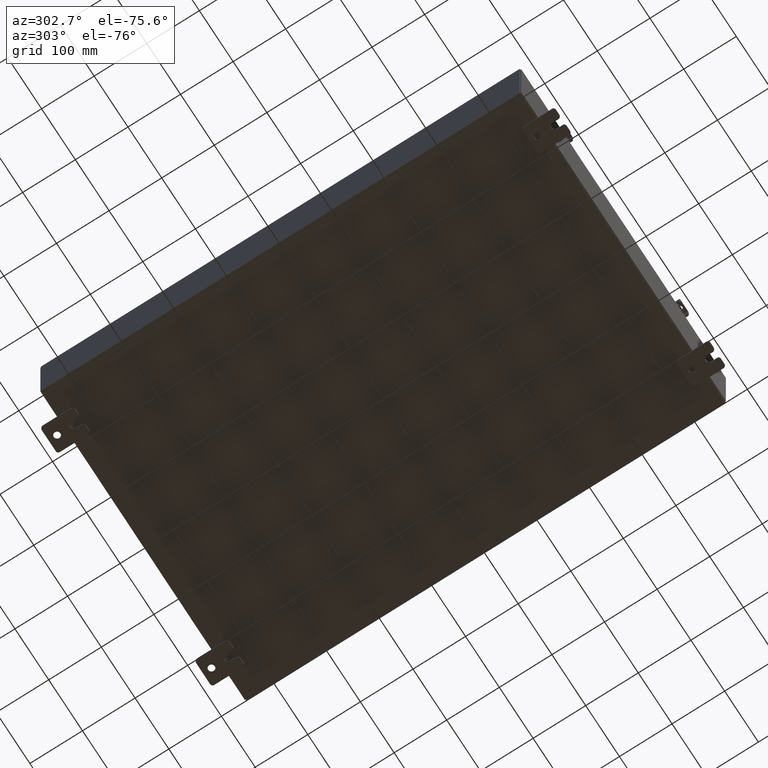
[diagram: clean part render]
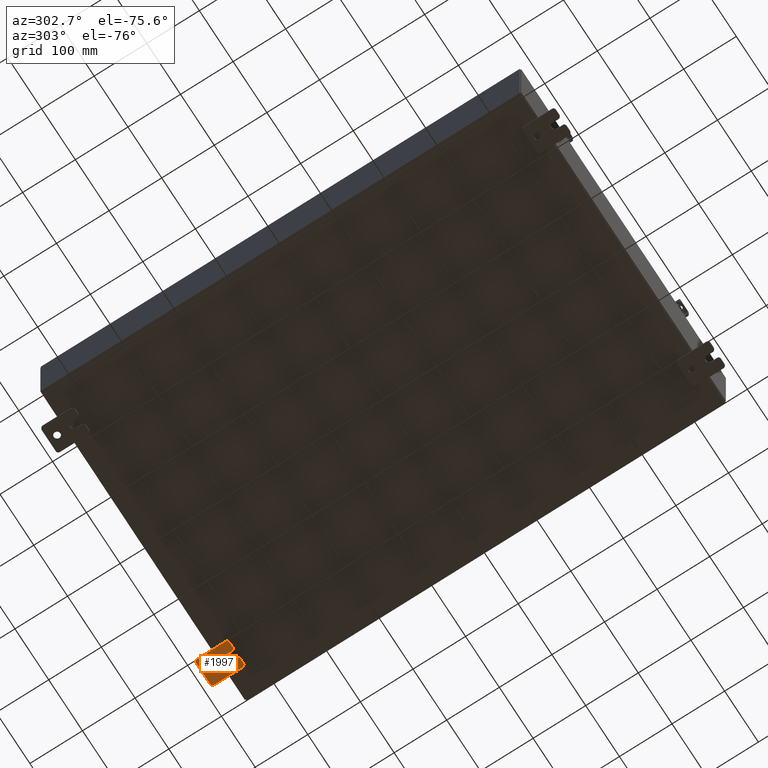
[diagram: same view with one face highlighted and labeled with its STEP entity id]
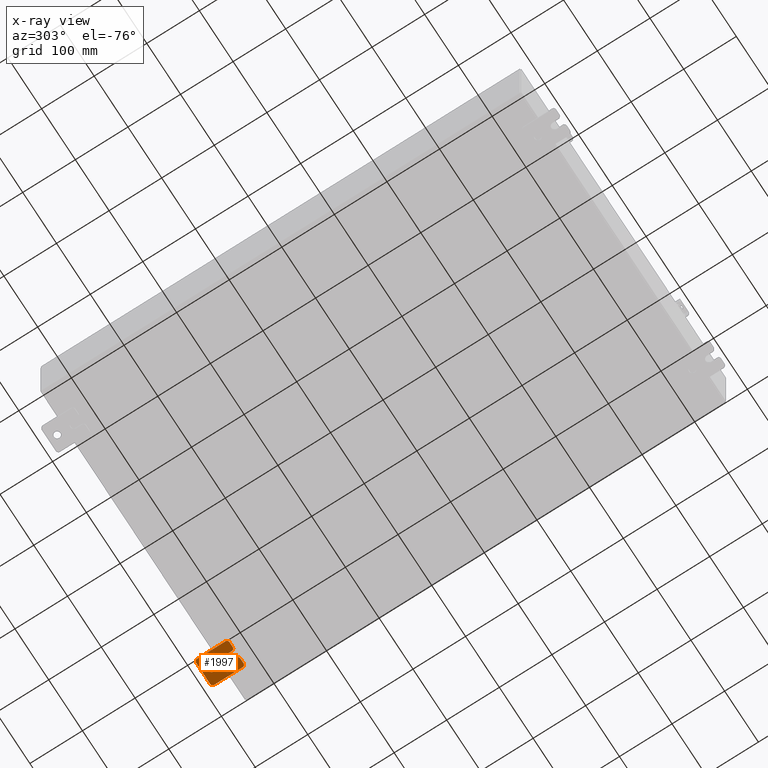
[diagram: x-ray of the same camera — body ghosted, the highlighted face saturated]
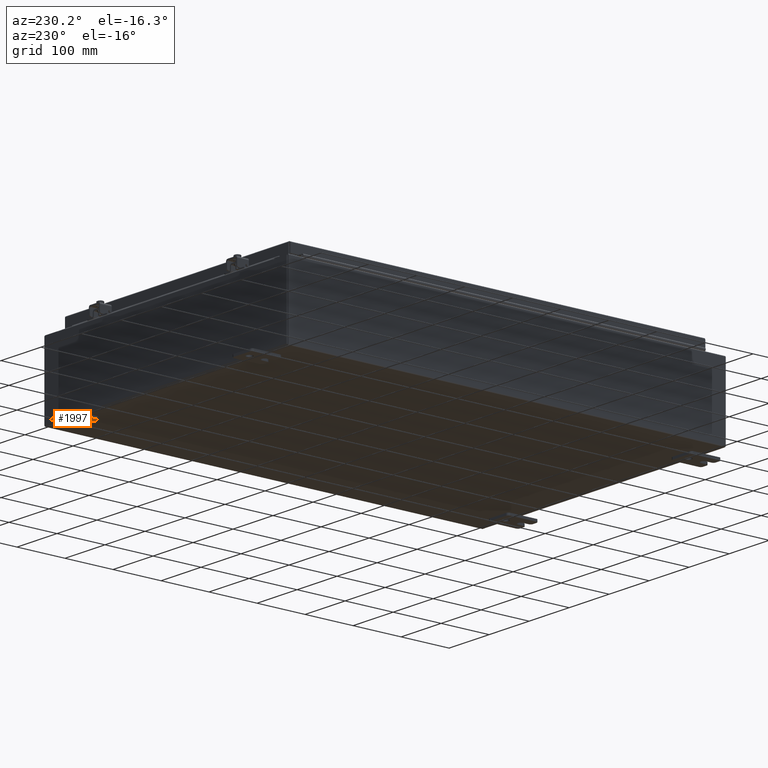
[diagram: same view with one face highlighted and labeled with its STEP entity id]
A machine part, auxiliary view. The second image highlights one B-rep face of the part: STEP entity #1997.
The next image is the same camera in x-ray: the body ghosted, the highlighted face saturated — about 0% of this face is hidden behind the body in this view.
A second angle (auxiliary view) of the same face is appended — the face is thin or edge-on in the first view.
In plain terms, the highlighted planar face has unit normal (0, 0, 1).
Its self-contained STEP definition (entity closure, byte-faithful):
#834 = CARTESIAN_POINT ( 'NONE',  ( -0.1879999999999997800, -1.250000000000002200, 0.9999999999999992200 ) ) ;
#854 = LINE ( 'NONE', #9519, #16379 ) ;
#1848 = EDGE_CURVE ( 'NONE', #13896, #25343, #11838, .T. ) ;
#1997 = ADVANCED_FACE ( 'NONE', ( #22131, #4569 ), #38419, .F. ) ;
#2129 = AXIS2_PLACEMENT_3D ( 'NONE', #26538, #6827, #29881 ) ;
#2768 = ORIENTED_EDGE ( 'NONE', *, *, #3434, .F. ) ;
#3088 = CARTESIAN_POINT ( 'NONE',  ( -0.1880000000000010000, 0.6249999999999992200, -7.703811342100550500E-020 ) ) ;
#3286 = EDGE_CURVE ( 'NONE', #25491, #25343, #6067, .T. ) ;
#3434 = EDGE_CURVE ( 'NONE', #24543, #41381, #854, .T. ) ;
#3578 = EDGE_CURVE ( 'NONE', #38608, #25491, #29747, .T. ) ;
#3685 = DIRECTION ( 'NONE',  ( -1.000000000000000000, 6.523827964459549700E-016, 5.163192708025532000E-017 ) ) ;
#3688 = LINE ( 'NONE', #12963, #20224 ) ;
#3749 = EDGE_CURVE ( 'NONE', #40767, #12719, #8096, .T. ) ;
#3792 = VERTEX_POINT ( 'NONE', #37645 ) ;
#4182 = EDGE_CURVE ( 'NONE', #40361, #41381, #10135, .T. ) ;
#4418 = CARTESIAN_POINT ( 'NONE',  ( -0.1880000000000001900, -0.6249999999999992200, 0.2500000000000005000 ) ) ;
#4506 = VERTEX_POINT ( 'NONE', #41260 ) ;
#4569 = FACE_OUTER_BOUND ( 'NONE', #33772, .T. ) ;
#5276 = CIRCLE ( 'NONE', #29681, 0.2499999999999999200 ) ;
#5283 = CARTESIAN_POINT ( 'NONE',  ( -0.1879999999999997800, 1.249999999999994200, -1.000000000000010400 ) ) ;
#5461 = CARTESIAN_POINT ( 'NONE',  ( -0.1879999999999997800, 0.0000000000000000000, 0.0000000000000000000 ) ) ;
#5736 = VECTOR ( 'NONE', #11937, 39.37007874015748100 ) ;
#6067 = LINE ( 'NONE', #41520, #40002 ) ;
#6434 = DIRECTION ( 'NONE',  ( 0.0000000000000000000, 0.0000000000000000000, -1.000000000000000000 ) ) ;
#6543 = CARTESIAN_POINT ( 'NONE',  ( -0.1879999999999997800, -1.060000000000004100, -0.8100000000000050500 ) ) ;
#6603 = VECTOR ( 'NONE', #20603, 39.37007874015748100 ) ;
#6760 = AXIS2_PLACEMENT_3D ( 'NONE', #5461, #18728, #41650 ) ;
#6809 = LINE ( 'NONE', #38991, #14544 ) ;
#6827 = DIRECTION ( 'NONE',  ( -1.000000000000000000, -0.0000000000000000000, 0.0000000000000000000 ) ) ;
#6909 = ORIENTED_EDGE ( 'NONE', *, *, #11608, .F. ) ;
#7624 = LINE ( 'NONE', #834, #6603 ) ;
#8096 = CIRCLE ( 'NONE', #14289, 0.2499999999999999200 ) ;
#9270 = EDGE_CURVE ( 'NONE', #3792, #25992, #33677, .T. ) ;
#9467 = CARTESIAN_POINT ( 'NONE',  ( -0.1879999999999997800, -1.250000000000003100, 0.4400000000000020000 ) ) ;
#9519 = CARTESIAN_POINT ( 'NONE',  ( -0.1879999999999997800, 1.249999999999997600, 0.9999999999999951200 ) ) ;
#9862 = DIRECTION ( 'NONE',  ( 0.0000000000000000000, 0.0000000000000000000, -1.000000000000000000 ) ) ;
#9931 = AXIS2_PLACEMENT_3D ( 'NONE', #18302, #41197, #21589 ) ;
#10135 = CIRCLE ( 'NONE', #2129, 0.1900000000000011100 ) ;
#10136 = ORIENTED_EDGE ( 'NONE', *, *, #4182, .T. ) ;
#11107 = CARTESIAN_POINT ( 'NONE',  ( -0.1880000000000010000, 0.6249999999999992200, 0.2499999999999999200 ) ) ;
#11579 = ORIENTED_EDGE ( 'NONE', *, *, #11689, .F. ) ;
#11608 = EDGE_CURVE ( 'NONE', #40361, #27119, #6809, .T. ) ;
#11689 = EDGE_CURVE ( 'NONE', #24209, #38608, #3688, .T. ) ;
#11838 = CIRCLE ( 'NONE', #18635, 0.1900000000000011100 ) ;
#11937 = DIRECTION ( 'NONE',  ( 0.0000000000000000000, 1.639108796198553600E-015, 1.000000000000000000 ) ) ;
#12010 = ORIENTED_EDGE ( 'NONE', *, *, #25391, .F. ) ;
#12719 = VERTEX_POINT ( 'NONE', #26972 ) ;
#12754 = CARTESIAN_POINT ( 'NONE',  ( -0.1879999999999997800, -1.060000000000003400, -0.4400000000000005000 ) ) ;
#12884 = CIRCLE ( 'NONE', #9931, 0.1900000000000011100 ) ;
#12963 = CARTESIAN_POINT ( 'NONE',  ( -0.1880000000000005800, -1.250000000000003800, 0.2500000000000005000 ) ) ;
#13142 = EDGE_CURVE ( 'NONE', #24209, #27119, #37576, .T. ) ;
#13896 = VERTEX_POINT ( 'NONE', #25609 ) ;
#14026 = VERTEX_POINT ( 'NONE', #23033 ) ;
#14289 = AXIS2_PLACEMENT_3D ( 'NONE', #34201, #14503, #37520 ) ;
#14372 = ORIENTED_EDGE ( 'NONE', *, *, #1848, .T. ) ;
#14412 = CARTESIAN_POINT ( 'NONE',  ( -0.1880000000000004700, -1.060000000000003400, -0.2499999999999994400 ) ) ;
#14438 = CARTESIAN_POINT ( 'NONE',  ( -0.1879999999999997800, 1.059999999999993400, -1.000000000000010000 ) ) ;
#14503 = DIRECTION ( 'NONE',  ( 1.000000000000000000, -0.0000000000000000000, -5.163192708025532000E-017 ) ) ;
#14544 = VECTOR ( 'NONE', #16013, 39.37007874015748100 ) ;
#14873 = EDGE_CURVE ( 'NONE', #14026, #4506, #15552, .T. ) ;
#15552 = LINE ( 'NONE', #5283, #5736 ) ;
#15771 = ORIENTED_EDGE ( 'NONE', *, *, #14873, .F. ) ;
#16013 = DIRECTION ( 'NONE',  ( 0.0000000000000000000, -1.639108796198553600E-015, -1.000000000000000000 ) ) ;
#16063 = DIRECTION ( 'NONE',  ( 0.0000000000000000000, 0.0000000000000000000, -1.000000000000000000 ) ) ;
#16379 = VECTOR ( 'NONE', #35849, 39.37007874015748100 ) ;
#16961 = CIRCLE ( 'NONE', #31149, 0.1900000000000011100 ) ;
#17231 = EDGE_CURVE ( 'NONE', #13896, #25992, #7624, .T. ) ;
#17380 = CARTESIAN_POINT ( 'NONE',  ( -0.1879999999999997800, 1.059999999999996300, 0.8099999999999938400 ) ) ;
#17935 = CARTESIAN_POINT ( 'NONE',  ( -0.1879999999999997800, -1.060000000000002100, 0.4400000000000016700 ) ) ;
#18302 = CARTESIAN_POINT ( 'NONE',  ( -0.1879999999999997800, 1.059999999999993600, -0.8100000000000089400 ) ) ;
#18589 = DIRECTION ( 'NONE',  ( -6.556435184794182400E-016, -1.000000000000000000, -1.639108796198545600E-016 ) ) ;
#18635 = AXIS2_PLACEMENT_3D ( 'NONE', #12754, #35777, #16063 ) ;
#18728 = DIRECTION ( 'NONE',  ( 1.000000000000000000, 0.0000000000000000000, -0.0000000000000000000 ) ) ;
#20224 = VECTOR ( 'NONE', #42536, 39.37007874015748100 ) ;
#20603 = DIRECTION ( 'NONE',  ( 0.0000000000000000000, -1.639108796198553600E-015, -1.000000000000000000 ) ) ;
#20662 = VERTEX_POINT ( 'NONE', #14438 ) ;
#20671 = DIRECTION ( 'NONE',  ( 0.0000000000000000000, 0.0000000000000000000, -1.000000000000000000 ) ) ;
#20760 = ORIENTED_EDGE ( 'NONE', *, *, #3286, .F. ) ;
#20791 = AXIS2_PLACEMENT_3D ( 'NONE', #17935, #40833, #21214 ) ;
#21214 = DIRECTION ( 'NONE',  ( 0.0000000000000000000, 0.0000000000000000000, -1.000000000000000000 ) ) ;
#21589 = DIRECTION ( 'NONE',  ( 0.0000000000000000000, 0.0000000000000000000, -1.000000000000000000 ) ) ;
#21819 = EDGE_LOOP ( 'NONE', ( #38819, #30670 ) ) ;
#21948 = CARTESIAN_POINT ( 'NONE',  ( -0.1879999999999997800, -1.250000000000002400, 0.8099999999999980500 ) ) ;
#22131 = FACE_BOUND ( 'NONE', #21819, .T. ) ;
#23033 = CARTESIAN_POINT ( 'NONE',  ( -0.1879999999999997800, 1.249999999999994700, -0.8100000000000092700 ) ) ;
#23438 = CARTESIAN_POINT ( 'NONE',  ( -0.1880000000000001900, -0.6249999999999992200, 6.829619984160658000E-017 ) ) ;
#24209 = VERTEX_POINT ( 'NONE', #27986 ) ;
#24222 = AXIS2_PLACEMENT_3D ( 'NONE', #6543, #29571, #9862 ) ;
#24518 = VECTOR ( 'NONE', #27742, 39.37007874015748100 ) ;
#24543 = VERTEX_POINT ( 'NONE', #36342 ) ;
#24787 = ORIENTED_EDGE ( 'NONE', *, *, #9270, .T. ) ;
#25343 = VERTEX_POINT ( 'NONE', #14412 ) ;
#25391 = EDGE_CURVE ( 'NONE', #3792, #20662, #25567, .T. ) ;
#25491 = VERTEX_POINT ( 'NONE', #41354 ) ;
#25567 = LINE ( 'NONE', #31097, #24518 ) ;
#25609 = CARTESIAN_POINT ( 'NONE',  ( -0.1879999999999997800, -1.250000000000004700, -0.4400000000000002200 ) ) ;
#25992 = VERTEX_POINT ( 'NONE', #29987 ) ;
#26134 = DIRECTION ( 'NONE',  ( 1.000000000000000000, -0.0000000000000000000, -5.163192708025532000E-017 ) ) ;
#26538 = CARTESIAN_POINT ( 'NONE',  ( -0.1879999999999997800, -1.060000000000001600, 0.8099999999999978300 ) ) ;
#26712 = DIRECTION ( 'NONE',  ( -6.829619984160660000E-016, -1.000000000000000000, 0.0000000000000000000 ) ) ;
#26972 = CARTESIAN_POINT ( 'NONE',  ( -0.1880000000000010000, 0.6249999999999992200, -0.2499999999999999200 ) ) ;
#27119 = VERTEX_POINT ( 'NONE', #9467 ) ;
#27742 = DIRECTION ( 'NONE',  ( 0.0000000000000000000, 1.000000000000000000, -1.639108796198558100E-015 ) ) ;
#27986 = CARTESIAN_POINT ( 'NONE',  ( -0.1880000000000004700, -1.060000000000002100, 0.2500000000000005000 ) ) ;
#28887 = ORIENTED_EDGE ( 'NONE', *, *, #17231, .F. ) ;
#29571 = DIRECTION ( 'NONE',  ( -1.000000000000000000, -0.0000000000000000000, 0.0000000000000000000 ) ) ;
#29681 = AXIS2_PLACEMENT_3D ( 'NONE', #3088, #26134, #6434 ) ;
#29747 = CIRCLE ( 'NONE', #32750, 0.2499999999999999200 ) ;
#29881 = DIRECTION ( 'NONE',  ( 0.0000000000000000000, 7.189073667537492800E-016, -1.000000000000000000 ) ) ;
#29987 = CARTESIAN_POINT ( 'NONE',  ( -0.1879999999999997800, -1.250000000000005300, -0.8100000000000047200 ) ) ;
#30595 = ORIENTED_EDGE ( 'NONE', *, *, #13142, .T. ) ;
#30670 = ORIENTED_EDGE ( 'NONE', *, *, #3749, .T. ) ;
#31097 = CARTESIAN_POINT ( 'NONE',  ( -0.1879999999999997800, -1.250000000000005600, -1.000000000000006200 ) ) ;
#31149 = AXIS2_PLACEMENT_3D ( 'NONE', #17380, #40302, #20671 ) ;
#31629 = ORIENTED_EDGE ( 'NONE', *, *, #41698, .T. ) ;
#32750 = AXIS2_PLACEMENT_3D ( 'NONE', #23438, #3685, #26712 ) ;
#33677 = CIRCLE ( 'NONE', #24222, 0.1900000000000011100 ) ;
#33772 = EDGE_LOOP ( 'NONE', ( #6909, #10136, #2768, #31629, #15771, #39775, #12010, #24787, #28887, #14372, #20760, #38285, #11579, #30595 ) ) ;
#34201 = CARTESIAN_POINT ( 'NONE',  ( -0.1880000000000010000, 0.6249999999999992200, -7.703811342100550500E-020 ) ) ;
#34406 = EDGE_CURVE ( 'NONE', #14026, #20662, #12884, .T. ) ;
#35777 = DIRECTION ( 'NONE',  ( -1.000000000000000000, -0.0000000000000000000, 0.0000000000000000000 ) ) ;
#35849 = DIRECTION ( 'NONE',  ( 0.0000000000000000000, -1.000000000000000000, 1.639108796198558100E-015 ) ) ;
#36342 = CARTESIAN_POINT ( 'NONE',  ( -0.1879999999999997800, 1.059999999999996500, 0.9999999999999953400 ) ) ;
#37520 = DIRECTION ( 'NONE',  ( 0.0000000000000000000, 0.0000000000000000000, -1.000000000000000000 ) ) ;
#37576 = CIRCLE ( 'NONE', #20791, 0.1900000000000011400 ) ;
#37645 = CARTESIAN_POINT ( 'NONE',  ( -0.1879999999999997800, -1.060000000000004500, -1.000000000000006400 ) ) ;
#38285 = ORIENTED_EDGE ( 'NONE', *, *, #3578, .F. ) ;
#38419 = PLANE ( 'NONE',  #6760 ) ;
#38608 = VERTEX_POINT ( 'NONE', #4418 ) ;
#38819 = ORIENTED_EDGE ( 'NONE', *, *, #38955, .T. ) ;
#38955 = EDGE_CURVE ( 'NONE', #12719, #40767, #5276, .T. ) ;
#38991 = CARTESIAN_POINT ( 'NONE',  ( -0.1879999999999997800, -1.250000000000002200, 0.9999999999999992200 ) ) ;
#39775 = ORIENTED_EDGE ( 'NONE', *, *, #34406, .T. ) ;
#40002 = VECTOR ( 'NONE', #18589, 39.37007874015748100 ) ;
#40302 = DIRECTION ( 'NONE',  ( -1.000000000000000000, -0.0000000000000000000, 0.0000000000000000000 ) ) ;
#40361 = VERTEX_POINT ( 'NONE', #21948 ) ;
#40767 = VERTEX_POINT ( 'NONE', #11107 ) ;
#40833 = DIRECTION ( 'NONE',  ( -1.000000000000000000, -0.0000000000000000000, 0.0000000000000000000 ) ) ;
#40908 = CARTESIAN_POINT ( 'NONE',  ( -0.1879999999999997800, -1.060000000000001200, 0.9999999999999988900 ) ) ;
#41197 = DIRECTION ( 'NONE',  ( -1.000000000000000000, -0.0000000000000000000, 0.0000000000000000000 ) ) ;
#41260 = CARTESIAN_POINT ( 'NONE',  ( -0.1879999999999997800, 1.249999999999997300, 0.8099999999999935000 ) ) ;
#41354 = CARTESIAN_POINT ( 'NONE',  ( -0.1880000000000001900, -0.6249999999999992200, -0.2499999999999998600 ) ) ;
#41381 = VERTEX_POINT ( 'NONE', #40908 ) ;
#41520 = CARTESIAN_POINT ( 'NONE',  ( -0.1880000000000001900, -0.6249999999999992200, -0.2499999999999993900 ) ) ;
#41650 = DIRECTION ( 'NONE',  ( -0.0000000000000000000, 0.0000000000000000000, -1.000000000000000000 ) ) ;
#41698 = EDGE_CURVE ( 'NONE', #24543, #4506, #16961, .T. ) ;
#42536 = DIRECTION ( 'NONE',  ( 6.556435184794182400E-016, 1.000000000000000000, 0.0000000000000000000 ) ) ;